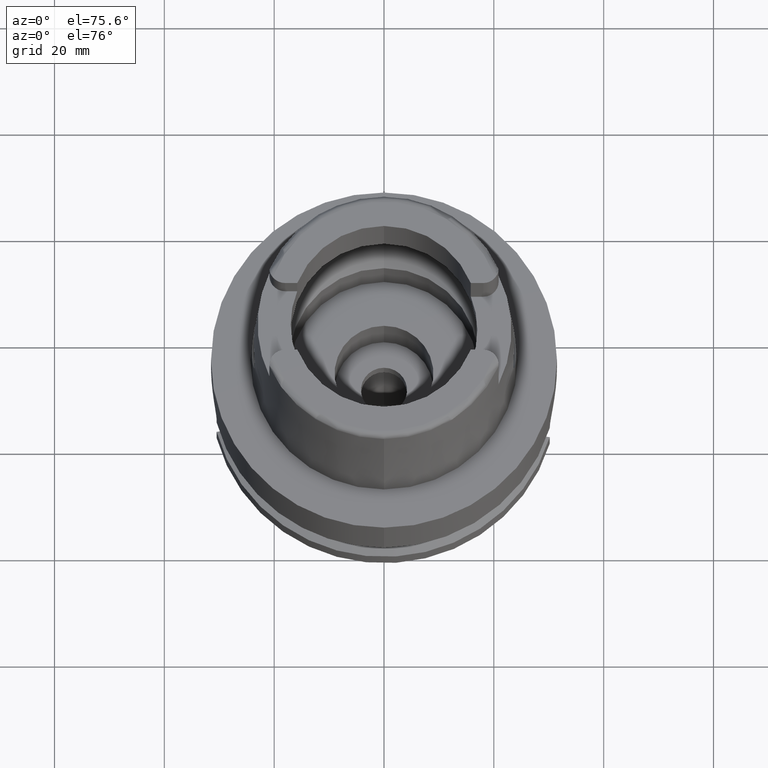
[diagram: clean part render]
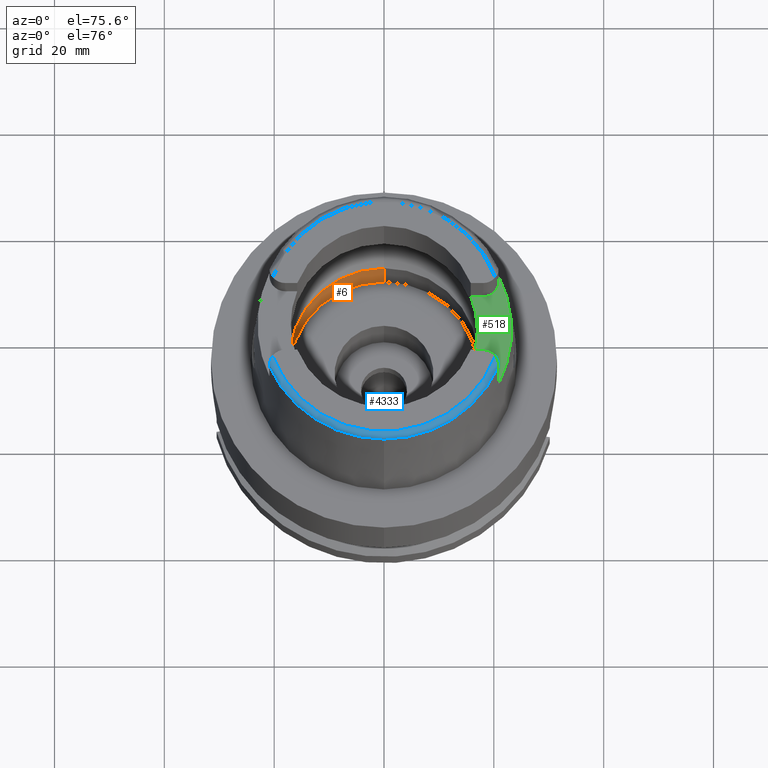
[diagram: same view with three faces highlighted in distinct colors, each labeled with its STEP entity id]
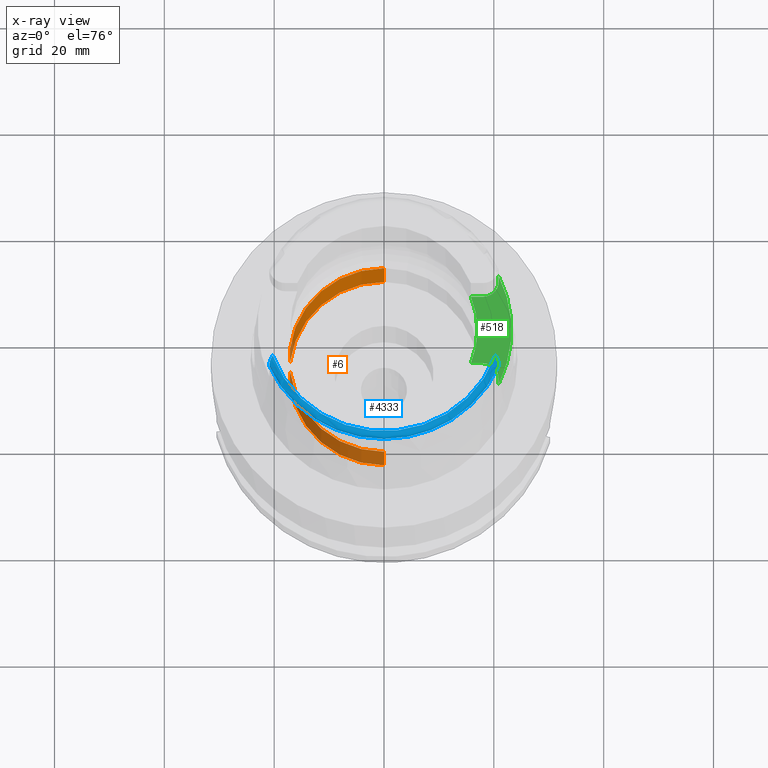
[diagram: x-ray of the same camera — body ghosted, the three highlighted faces saturated]
A machine part, auxiliary view with three faces highlighted in distinct colors.
The next image is the same camera in x-ray (body ghosted, the three faces saturated) — at least one of them is partly hidden behind the body in this view.
Their STEP definitions:

[orange] entity #6 — the highlighted cylindrical surface (partial cylindrical patch) has radius 17.25 mm, axis along (0, 0, 1).
#6 = ADVANCED_FACE ( 'NONE', ( #408 ), #5117, .F. ) ;
#103 = DIRECTION ( 'NONE',  ( 0.0000000000000000000, 0.0000000000000000000, -1.000000000000000000 ) ) ;
#262 = EDGE_CURVE ( 'NONE', #3041, #1965, #3048, .T. ) ;
#408 = FACE_OUTER_BOUND ( 'NONE', #868, .T. ) ;
#446 = LINE ( 'NONE', #2188, #556 ) ;
#556 = VECTOR ( 'NONE', #4819, 1000.000000000000000 ) ;
#868 = EDGE_LOOP ( 'NONE', ( #1957, #1447, #3262, #1809 ) ) ;
#960 = CARTESIAN_POINT ( 'NONE',  ( 0.0000000000000000000, 0.0000000000000000000, 0.0000000000000000000 ) ) ;
#968 = EDGE_CURVE ( 'NONE', #3152, #1965, #4348, .T. ) ;
#1146 = DIRECTION ( 'NONE',  ( 0.0000000000000000000, 0.0000000000000000000, -1.000000000000000000 ) ) ;
#1202 = CIRCLE ( 'NONE', #3566, 17.25000000000000000 ) ;
#1447 = ORIENTED_EDGE ( 'NONE', *, *, #5291, .F. ) ;
#1599 = DIRECTION ( 'NONE',  ( 0.0000000000000000000, -1.000000000000000000, 0.0000000000000000000 ) ) ;
#1698 = DIRECTION ( 'NONE',  ( 0.0000000000000000000, 1.000000000000000000, 0.0000000000000000000 ) ) ;
#1809 = ORIENTED_EDGE ( 'NONE', *, *, #262, .T. ) ;
#1877 = AXIS2_PLACEMENT_3D ( 'NONE', #960, #103, #4019 ) ;
#1957 = ORIENTED_EDGE ( 'NONE', *, *, #968, .F. ) ;
#1965 = VERTEX_POINT ( 'NONE', #2626 ) ;
#2188 = CARTESIAN_POINT ( 'NONE',  ( 0.0000000000000000000, -17.25000000000000000, -9.950000000000001066 ) ) ;
#2353 = CARTESIAN_POINT ( 'NONE',  ( 0.0000000000000000000, -17.25000000000000000, 0.0000000000000000000 ) ) ;
#2626 = CARTESIAN_POINT ( 'NONE',  ( 0.0000000000000000000, 17.25000000000000000, 0.0000000000000000000 ) ) ;
#2904 = CARTESIAN_POINT ( 'NONE',  ( 0.0000000000000000000, 0.0000000000000000000, 0.0000000000000000000 ) ) ;
#3041 = VERTEX_POINT ( 'NONE', #5501 ) ;
#3048 = LINE ( 'NONE', #4038, #4220 ) ;
#3152 = VERTEX_POINT ( 'NONE', #2353 ) ;
#3262 = ORIENTED_EDGE ( 'NONE', *, *, #5232, .T. ) ;
#3566 = AXIS2_PLACEMENT_3D ( 'NONE', #4180, #1146, #1599 ) ;
#3803 = CARTESIAN_POINT ( 'NONE',  ( 0.0000000000000000000, -17.25000000000000000, -9.950000000000001066 ) ) ;
#3852 = AXIS2_PLACEMENT_3D ( 'NONE', #2904, #4330, #1698 ) ;
#3921 = DIRECTION ( 'NONE',  ( 0.0000000000000000000, 0.0000000000000000000, 1.000000000000000000 ) ) ;
#4019 = DIRECTION ( 'NONE',  ( 0.0000000000000000000, -1.000000000000000000, 0.0000000000000000000 ) ) ;
#4038 = CARTESIAN_POINT ( 'NONE',  ( 0.0000000000000000000, 17.25000000000000000, -9.950000000000001066 ) ) ;
#4180 = CARTESIAN_POINT ( 'NONE',  ( 0.0000000000000000000, 0.0000000000000000000, -9.950000000000001066 ) ) ;
#4220 = VECTOR ( 'NONE', #3921, 1000.000000000000000 ) ;
#4330 = DIRECTION ( 'NONE',  ( 0.0000000000000000000, 0.0000000000000000000, 1.000000000000000000 ) ) ;
#4348 = CIRCLE ( 'NONE', #1877, 17.25000000000000000 ) ;
#4819 = DIRECTION ( 'NONE',  ( 0.0000000000000000000, 0.0000000000000000000, 1.000000000000000000 ) ) ;
#5117 = CYLINDRICAL_SURFACE ( 'NONE', #3852, 17.25000000000000000 ) ;
#5133 = VERTEX_POINT ( 'NONE', #3803 ) ;
#5232 = EDGE_CURVE ( 'NONE', #5133, #3041, #1202, .T. ) ;
#5291 = EDGE_CURVE ( 'NONE', #5133, #3152, #446, .T. ) ;
#5501 = CARTESIAN_POINT ( 'NONE',  ( 0.0000000000000000000, 17.25000000000000000, -9.950000000000001066 ) ) ;

[blue] entity #4333 — the highlighted toroidal blend (fillet) surface has major radius 21.5735 mm and minor (blend) radius 1.2 mm.
#21 = CARTESIAN_POINT ( 'NONE',  ( 0.0000000000000000000, 0.0000000000000000000, 30.85992712280000205 ) ) ;
#109 = CIRCLE ( 'NONE', #3288, 22.77198729362001117 ) ;
#145 = DIRECTION ( 'NONE',  ( 0.0000000000000000000, 0.0000000000000000000, -1.000000000000000000 ) ) ;
#149 = CARTESIAN_POINT ( 'NONE',  ( 20.86999999999999744, -9.027466053544706881, 31.10320975803935895 ) ) ;
#176 = CARTESIAN_POINT ( 'NONE',  ( 20.87000000000000099, -9.070000000000000284, 31.00584217417999966 ) ) ;
#204 = CARTESIAN_POINT ( 'NONE',  ( 20.65989317312919837, -8.000969851300299140, 31.85277509876306823 ) ) ;
#230 = CARTESIAN_POINT ( 'NONE',  ( -20.80944125743187101, -8.560931589284228593, 31.56167284231965908 ) ) ;
#253 = CARTESIAN_POINT ( 'NONE',  ( -20.86840555974040612, -9.053424643217532264, 31.04930129955603491 ) ) ;
#256 = ORIENTED_EDGE ( 'NONE', *, *, #5053, .F. ) ;
#348 = EDGE_CURVE ( 'NONE', #2395, #2917, #1812, .T. ) ;
#394 = DIRECTION ( 'NONE',  ( -0.0006539142454761719559, -0.9999997861980568503, 0.0000000000000000000 ) ) ;
#571 = CARTESIAN_POINT ( 'NONE',  ( 20.83291910200402697, -8.611146962856956577, 31.51081262675146277 ) ) ;
#601 = CARTESIAN_POINT ( 'NONE',  ( 20.79478934292429315, -8.425198604042915207, 31.63366604724851427 ) ) ;
#623 = CARTESIAN_POINT ( 'NONE',  ( -20.86557556137369929, -8.988896582597265095, 31.15751111892445735 ) ) ;
#626 = CARTESIAN_POINT ( 'NONE',  ( 20.82063947251255698, -8.540908562091757972, 31.56017788001964064 ) ) ;
#637 = CARTESIAN_POINT ( 'NONE',  ( -20.86974104083000014, -9.111384060663999307, 30.85992586919000047 ) ) ;
#647 = CARTESIAN_POINT ( 'NONE',  ( 20.87000527243999670, -9.110771420352000050, 30.85992623711999983 ) ) ;
#654 = CARTESIAN_POINT ( 'NONE',  ( -20.81965130235440498, -8.613726590839799968, 31.52312835331175123 ) ) ;
#814 = CARTESIAN_POINT ( 'NONE',  ( 20.28174256341000259, -7.352969181062000814, 32.00000000000000000 ) ) ;
#903 = DIRECTION ( 'NONE',  ( 0.0000000000000000000, 0.0000000000000000000, -1.000000000000000000 ) ) ;
#1060 = CARTESIAN_POINT ( 'NONE',  ( 20.87000527243999670, -9.110771420352000050, 30.85992623711999983 ) ) ;
#1061 = CARTESIAN_POINT ( 'NONE',  ( -20.71087063980491649, -8.202946958521431853, 31.77470310352421734 ) ) ;
#1064 = CARTESIAN_POINT ( 'NONE',  ( 20.69631002100164352, -8.094232892495334397, 31.81255263053273907 ) ) ;
#1087 = CARTESIAN_POINT ( 'NONE',  ( -20.83389679730635891, -8.695078261903434580, 31.46055235143609963 ) ) ;
#1118 = CARTESIAN_POINT ( 'NONE',  ( -20.75937723563937709, -8.359371561721335553, 31.68931180110121915 ) ) ;
#1121 = CARTESIAN_POINT ( 'NONE',  ( 20.57549815007833161, -7.819460688910765178, 31.91775230906814542 ) ) ;
#1366 = CIRCLE ( 'NONE', #3093, 21.57348458609000375 ) ;
#1382 = CIRCLE ( 'NONE', #1475, 22.77198729362000051 ) ;
#1423 = CARTESIAN_POINT ( 'NONE',  ( 20.87000000000000099, -9.077241786391001099, 30.98926446855000094 ) ) ;
#1449 = CARTESIAN_POINT ( 'NONE',  ( 20.87000527243999670, -9.108815747323999901, 30.87557453016999887 ) ) ;
#1475 = AXIS2_PLACEMENT_3D ( 'NONE', #21, #903, #394 ) ;
#1481 = CARTESIAN_POINT ( 'NONE',  ( -20.78390092998079552, -8.450684175141820020, 31.63434096999136713 ) ) ;
#1485 = CARTESIAN_POINT ( 'NONE',  ( 20.60584142187732581, -7.882689753701292545, 31.89608490661834850 ) ) ;
#1495 = ORIENTED_EDGE ( 'NONE', *, *, #2905, .T. ) ;
#1511 = CARTESIAN_POINT ( 'NONE',  ( -20.41173157002542737, -7.573831413672925450, 32.00000000000000711 ) ) ;
#1514 = CARTESIAN_POINT ( 'NONE',  ( 20.76384182572031989, -8.303672062692951883, 31.70578051577395584 ) ) ;
#1600 = CARTESIAN_POINT ( 'NONE',  ( -20.53798833350975883, -7.784002006565056142, 31.95268787515388809 ) ) ;
#1812 = B_SPLINE_CURVE_WITH_KNOTS ( 'NONE', 3,
 ( #3690, #4129, #3228, #1924, #3631, #1121, #4159, #1485, #2845, #204, #1064, #4611, #1514, #4971, #601, #3716, #5397, #2366, #626, #571, #2814, #2789, #1982, #5476, #5426, #149, #176 ),
 .UNSPECIFIED., .F., .F.,
 ( 4, 2, 1, 1, 2, 2, 2, 1, 1, 1, 2, 2, 2, 2, 2, 4 ),
 ( 0.0000000000000000000, 0.1250000000000028033, 0.1875000000000054956, 0.2187500000000063283, 0.2343750000000059397, 0.2500000000000055511, 0.3749999999999859002, 0.4374999999999752420, 0.4687499999999692468, 0.4843749999999647504, 0.4921874999999628630, 0.4999999999999609757, 0.6249999999999721334, 0.6874999999999785727, 0.7499999999999847899, 1.000000000000000000 ),
 .UNSPECIFIED. ) ;
#1826 = DIRECTION ( 'NONE',  ( -0.0006539142454762719193, -0.9999997861980568503, 0.0000000000000000000 ) ) ;
#1859 = EDGE_CURVE ( 'NONE', #3447, #2103, #1382, .T. ) ;
#1892 = CARTESIAN_POINT ( 'NONE',  ( 20.87000000000000099, -9.070000000000000284, 31.00584217417999966 ) ) ;
#1919 = CARTESIAN_POINT ( 'NONE',  ( -20.86135566201882341, -8.922682725543234383, 31.24556888721111036 ) ) ;
#1924 = CARTESIAN_POINT ( 'NONE',  ( 20.49047487034735937, -7.661369542464833593, 31.96226629233233396 ) ) ;
#1952 = CARTESIAN_POINT ( 'NONE',  ( -20.65967162955713832, -8.069508815592088879, 31.83568683232067187 ) ) ;
#1980 = CARTESIAN_POINT ( 'NONE',  ( -20.73694000585300046, -8.282940188721962471, 31.73269135242604833 ) ) ;
#1982 = CARTESIAN_POINT ( 'NONE',  ( 20.85693377095607914, -8.798186533019105582, 31.35731424292958991 ) ) ;
#2049 = CARTESIAN_POINT ( 'NONE',  ( 0.0000000000000000000, -22.77198729362000051, 30.85992712280000205 ) ) ;
#2103 = VERTEX_POINT ( 'NONE', #637 ) ;
#2362 = CARTESIAN_POINT ( 'NONE',  ( -20.82957567681351918, -8.668532734033453480, 31.48172813807788373 ) ) ;
#2366 = CARTESIAN_POINT ( 'NONE',  ( 20.80293936292530077, -8.460848375773549535, 31.61127780561272971 ) ) ;
#2385 = AXIS2_PLACEMENT_3D ( 'NONE', #5223, #3066, #1826 ) ;
#2392 = CARTESIAN_POINT ( 'NONE',  ( -20.84183081359974210, -8.746673659809168555, 31.41807175424027321 ) ) ;
#2395 = VERTEX_POINT ( 'NONE', #814 ) ;
#2440 = CARTESIAN_POINT ( 'NONE',  ( -20.26871835884000106, -7.388795116668999796, 32.00000000000000000 ) ) ;
#2470 = CARTESIAN_POINT ( 'NONE',  ( -20.64872152119643545, -8.042838005541925739, 31.84707166055133243 ) ) ;
#2789 = CARTESIAN_POINT ( 'NONE',  ( 20.85053978640041095, -8.739121017935568503, 31.40922190750005427 ) ) ;
#2814 = CARTESIAN_POINT ( 'NONE',  ( 20.84671456296227987, -8.708166814247643828, 31.43485793837249531 ) ) ;
#2842 = CARTESIAN_POINT ( 'NONE',  ( -20.86965396060401901, -9.104885656140119465, 30.91352330295328699 ) ) ;
#2845 = CARTESIAN_POINT ( 'NONE',  ( 20.61235746419344750, -7.896722288444665949, 31.89105184927624848 ) ) ;
#2895 = CARTESIAN_POINT ( 'NONE',  ( -20.86974104083000014, -9.111384060663999307, 30.85992586919000047 ) ) ;
#2905 = EDGE_CURVE ( 'NONE', #2395, #5066, #1366, .T. ) ;
#2917 = VERTEX_POINT ( 'NONE', #5393 ) ;
#2928 = B_SPLINE_CURVE_WITH_KNOTS ( 'NONE', 3,
 ( #2895, #2842, #3741, #253, #5079, #3775, #623, #1919, #4608, #3277, #2392, #1087, #2362, #5507, #3306, #654, #230, #5391, #1481, #5424, #5019, #1118, #3224, #1980, #1061, #4122, #1952, #2470, #3713, #1600, #1511, #3334 ),
 .UNSPECIFIED., .F., .F.,
 ( 4, 2, 2, 2, 2, 2, 1, 2, 2, 2, 1, 2, 2, 1, 1, 2, 2, 4 ),
 ( 0.0000000000000000000, 0.1249999999999988065, 0.1875000000000008049, 0.2500000000000028311, 0.3750000000000117129, 0.4375000000000199840, 0.4687500000000240918, 0.4843750000000227596, 0.5000000000000214273, 0.5625000000000277556, 0.5937500000000305311, 0.6093750000000319744, 0.6250000000000333067, 0.6875000000000401901, 0.7187500000000435207, 0.7343750000000437428, 0.7500000000000438538, 1.000000000000000000 ),
 .UNSPECIFIED. ) ;
#3066 = DIRECTION ( 'NONE',  ( 0.0000000000000000000, 0.0000000000000000000, 1.000000000000000000 ) ) ;
#3093 = AXIS2_PLACEMENT_3D ( 'NONE', #5310, #5282, #4033 ) ;
#3165 = CARTESIAN_POINT ( 'NONE',  ( 20.86999753952999725, -9.103349199567000838, 30.90727108088000108 ) ) ;
#3223 = CARTESIAN_POINT ( 'NONE',  ( 20.87000070298999788, -9.089829044885000542, 30.95631188083000040 ) ) ;
#3224 = CARTESIAN_POINT ( 'NONE',  ( -20.75651957384753388, -8.349399316435427210, 31.69506247104218843 ) ) ;
#3228 = CARTESIAN_POINT ( 'NONE',  ( 20.40597376087879411, -7.522427693449857067, 31.99056657308309326 ) ) ;
#3277 = CARTESIAN_POINT ( 'NONE',  ( -20.84617743572721693, -8.779075271056164809, 31.38957932422665209 ) ) ;
#3288 = AXIS2_PLACEMENT_3D ( 'NONE', #5366, #145, #4966 ) ;
#3306 = CARTESIAN_POINT ( 'NONE',  ( -20.82124085040150874, -8.622207079828278609, 31.51683833193841977 ) ) ;
#3334 = CARTESIAN_POINT ( 'NONE',  ( -20.26871835884000106, -7.388795116668999796, 32.00000000000000000 ) ) ;
#3338 = ORIENTED_EDGE ( 'NONE', *, *, #4287, .F. ) ;
#3447 = VERTEX_POINT ( 'NONE', #2049 ) ;
#3631 = CARTESIAN_POINT ( 'NONE',  ( 20.53115025137623206, -7.732795395376441228, 31.94457861686312583 ) ) ;
#3690 = CARTESIAN_POINT ( 'NONE',  ( 20.28174256341000259, -7.352969181062000814, 32.00000000000000000 ) ) ;
#3713 = CARTESIAN_POINT ( 'NONE',  ( -20.64363927563186607, -8.030693163471388729, 31.85214960985589983 ) ) ;
#3716 = CARTESIAN_POINT ( 'NONE',  ( 20.79878803236591267, -8.442504310137170620, 31.62285549402754725 ) ) ;
#3741 = CARTESIAN_POINT ( 'NONE',  ( -20.86946710590525811, -9.089579394755842756, 30.96756683976520108 ) ) ;
#3775 = CARTESIAN_POINT ( 'NONE',  ( -20.86645911899746508, -9.006285414326008265, 31.13159338815765764 ) ) ;
#3823 = ORIENTED_EDGE ( 'NONE', *, *, #5062, .F. ) ;
#3913 = FACE_OUTER_BOUND ( 'NONE', #4979, .T. ) ;
#4033 = DIRECTION ( 'NONE',  ( 0.9401236264118068009, -0.3408336354621024911, 0.0000000000000000000 ) ) ;
#4122 = CARTESIAN_POINT ( 'NONE',  ( -20.67575093861131563, -8.109527567696140693, 31.81821672665437717 ) ) ;
#4129 = CARTESIAN_POINT ( 'NONE',  ( 20.34544331390013738, -7.435023422382247560, 32.00000000000000711 ) ) ;
#4159 = CARTESIAN_POINT ( 'NONE',  ( 20.59380051161442893, -7.857305349459556609, 31.90492874435296144 ) ) ;
#4287 = EDGE_CURVE ( 'NONE', #2103, #5066, #2928, .T. ) ;
#4301 = B_SPLINE_CURVE_WITH_KNOTS ( 'NONE', 3,
 ( #1892, #1423, #3223, #3165, #1449, #1060 ),
 .UNSPECIFIED., .F., .F.,
 ( 4, 1, 1, 4 ),
 ( 0.0000000000000000000, 0.3333333333333000081, 0.6666666666667000474, 1.000000000000000000 ),
 .UNSPECIFIED. ) ;
#4333 = ADVANCED_FACE ( 'NONE', ( #3913 ), #4684, .T. ) ;
#4608 = CARTESIAN_POINT ( 'NONE',  ( -20.85702335642099214, -8.870150273657264606, 31.30358593853665994 ) ) ;
#4611 = CARTESIAN_POINT ( 'NONE',  ( 20.74270208879862665, -8.233895946573097646, 31.74292089319266807 ) ) ;
#4684 = TOROIDAL_SURFACE ( 'NONE', #2385, 21.57348458609000019, 1.199999999999999956 ) ;
#4895 = ORIENTED_EDGE ( 'NONE', *, *, #348, .F. ) ;
#4966 = DIRECTION ( 'NONE',  ( 0.9164775804687985694, -0.4000860463675992573, 0.0000000000000000000 ) ) ;
#4971 = CARTESIAN_POINT ( 'NONE',  ( 20.78503924901574607, -8.384759796238576257, 31.65838218514202396 ) ) ;
#4979 = EDGE_LOOP ( 'NONE', ( #5497, #256, #3823, #4895, #1495, #3338 ) ) ;
#5019 = CARTESIAN_POINT ( 'NONE',  ( -20.76586066013513587, -8.382444662446598471, 31.67582812752360510 ) ) ;
#5053 = EDGE_CURVE ( 'NONE', #5418, #3447, #109, .T. ) ;
#5062 = EDGE_CURVE ( 'NONE', #2917, #5418, #4301, .T. ) ;
#5066 = VERTEX_POINT ( 'NONE', #2440 ) ;
#5079 = CARTESIAN_POINT ( 'NONE',  ( -20.86791392566999903, -9.039174092226467394, 31.07665764524847063 ) ) ;
#5223 = CARTESIAN_POINT ( 'NONE',  ( 0.0000000000000000000, 0.0000000000000000000, 30.80000000000000071 ) ) ;
#5282 = DIRECTION ( 'NONE',  ( 0.0000000000000000000, 0.0000000000000000000, -1.000000000000000000 ) ) ;
#5310 = CARTESIAN_POINT ( 'NONE',  ( 0.0000000000000000000, 0.0000000000000000000, 32.00000000000000000 ) ) ;
#5366 = CARTESIAN_POINT ( 'NONE',  ( 0.0000000000000000000, 0.0000000000000000000, 30.85992712280000205 ) ) ;
#5391 = CARTESIAN_POINT ( 'NONE',  ( -20.80006079709092148, -8.517498273179295865, 31.59140322093994513 ) ) ;
#5393 = CARTESIAN_POINT ( 'NONE',  ( 20.87000000000000099, -9.070000000000000284, 31.00584217417999966 ) ) ;
#5397 = CARTESIAN_POINT ( 'NONE',  ( 20.80141405927696496, -8.454035550405690103, 31.61560003128129637 ) ) ;
#5418 = VERTEX_POINT ( 'NONE', #647 ) ;
#5424 = CARTESIAN_POINT ( 'NONE',  ( -20.77529855508505818, -8.416861553124887152, 31.65539538979731660 ) ) ;
#5426 = CARTESIAN_POINT ( 'NONE',  ( 20.86950551965417233, -8.954957829139427616, 31.20274675801962871 ) ) ;
#5476 = CARTESIAN_POINT ( 'NONE',  ( 20.85959324314661956, -8.827464118595086617, 31.32987977814606495 ) ) ;
#5497 = ORIENTED_EDGE ( 'NONE', *, *, #1859, .F. ) ;
#5507 = CARTESIAN_POINT ( 'NONE',  ( -20.82465873988622462, -8.640883168661350311, 31.50280715678544041 ) ) ;

[green] entity #518 — the highlighted planar face has unit normal (0, 0, 1).
#2 = CARTESIAN_POINT ( 'NONE',  ( 20.87000000000000099, 9.070000000000000284, 22.00000000000000000 ) ) ;
#33 = FACE_OUTER_BOUND ( 'NONE', #5163, .T. ) ;
#508 = CARTESIAN_POINT ( 'NONE',  ( 15.80149043602999903, 6.270000000000000462, 22.00000000000000000 ) ) ;
#518 = ADVANCED_FACE ( 'NONE', ( #33 ), #3098, .T. ) ;
#635 = CARTESIAN_POINT ( 'NONE',  ( 20.87000000000000099, -9.070000000000000284, 22.00000000000000000 ) ) ;
#720 = CARTESIAN_POINT ( 'NONE',  ( 20.87000000000000099, 9.070000000000000284, 22.00000000000000000 ) ) ;
#780 = EDGE_CURVE ( 'NONE', #3907, #2735, #2581, .T. ) ;
#839 = AXIS2_PLACEMENT_3D ( 'NONE', #3005, #1769, #3887 ) ;
#1070 = EDGE_CURVE ( 'NONE', #1129, #2853, #5109, .T. ) ;
#1098 = VERTEX_POINT ( 'NONE', #1158 ) ;
#1129 = VERTEX_POINT ( 'NONE', #4646 ) ;
#1158 = CARTESIAN_POINT ( 'NONE',  ( 18.07000000000000028, -6.270000000000000462, 22.00000000000000000 ) ) ;
#1209 = CARTESIAN_POINT ( 'NONE',  ( 18.07000000000000028, -6.270000000000000462, 22.00000000000000000 ) ) ;
#1299 = VERTEX_POINT ( 'NONE', #5153 ) ;
#1460 = ORIENTED_EDGE ( 'NONE', *, *, #5392, .F. ) ;
#1699 = ORIENTED_EDGE ( 'NONE', *, *, #1070, .F. ) ;
#1719 = ORIENTED_EDGE ( 'NONE', *, *, #2712, .F. ) ;
#1740 = DIRECTION ( 'NONE',  ( -4.018343739316107275E-06, 0.9999999999919265692, -7.121100977230194019E-14 ) ) ;
#1741 = VECTOR ( 'NONE', #2011, 1000.000000000000000 ) ;
#1769 = DIRECTION ( 'NONE',  ( 0.0000000000000000000, 0.0000000000000000000, 1.000000000000000000 ) ) ;
#1915 = AXIS2_PLACEMENT_3D ( 'NONE', #3313, #2819, #5482 ) ;
#2011 = DIRECTION ( 'NONE',  ( -1.000000000000000000, -8.496094534321000305E-14, 0.0000000000000000000 ) ) ;
#2111 = AXIS2_PLACEMENT_3D ( 'NONE', #4879, #2585, #2168 ) ;
#2168 = DIRECTION ( 'NONE',  ( 1.000000000000000000, 0.0000000000000000000, 0.0000000000000000000 ) ) ;
#2254 = CARTESIAN_POINT ( 'NONE',  ( 18.07000000000000028, 6.270000000000000462, 22.00000000000000000 ) ) ;
#2547 = VECTOR ( 'NONE', #2995, 1000.000000000000000 ) ;
#2581 = CIRCLE ( 'NONE', #4787, 2.800000000000000266 ) ;
#2585 = DIRECTION ( 'NONE',  ( 0.0000000000000000000, 0.0000000000000000000, 1.000000000000000000 ) ) ;
#2688 = ORIENTED_EDGE ( 'NONE', *, *, #5225, .F. ) ;
#2712 = EDGE_CURVE ( 'NONE', #1299, #1129, #4468, .T. ) ;
#2735 = VERTEX_POINT ( 'NONE', #720 ) ;
#2742 = CIRCLE ( 'NONE', #839, 2.800000000000000266 ) ;
#2819 = DIRECTION ( 'NONE',  ( 0.0000000000000000000, 0.0000000000000000000, -1.000000000000000000 ) ) ;
#2823 = CARTESIAN_POINT ( 'NONE',  ( 20.87000000000000099, -9.435852868557860873, 22.00000000000000000 ) ) ;
#2838 = EDGE_CURVE ( 'NONE', #1098, #5594, #5115, .T. ) ;
#2853 = VERTEX_POINT ( 'NONE', #5027 ) ;
#2882 = CARTESIAN_POINT ( 'NONE',  ( 20.87000000000000099, -10.16755860605000095, 22.00000000000000000 ) ) ;
#2995 = DIRECTION ( 'NONE',  ( 1.000000000000000000, -8.222026968698000936E-14, 0.0000000000000000000 ) ) ;
#3005 = CARTESIAN_POINT ( 'NONE',  ( 18.07000000000000028, -9.070000000000000284, 22.00000000000000000 ) ) ;
#3098 = PLANE ( 'NONE',  #2111 ) ;
#3287 = CARTESIAN_POINT ( 'NONE',  ( 20.87000000000000099, -9.801705737115721462, 22.00000000000000000 ) ) ;
#3313 = CARTESIAN_POINT ( 'NONE',  ( 0.0000000000000000000, 0.0000000000000000000, 22.00000000000000000 ) ) ;
#3355 = CARTESIAN_POINT ( 'NONE',  ( 15.80149043602999903, -6.270000000000000462, 22.00000000000000000 ) ) ;
#3359 = DIRECTION ( 'NONE',  ( 0.0000000000000000000, 0.0000000000000000000, 1.000000000000000000 ) ) ;
#3435 = CARTESIAN_POINT ( 'NONE',  ( 18.07000000000000028, 9.070000000000000284, 22.00000000000000000 ) ) ;
#3520 = ORIENTED_EDGE ( 'NONE', *, *, #780, .F. ) ;
#3774 = CARTESIAN_POINT ( 'NONE',  ( 0.0000000000000000000, 0.0000000000000000000, 22.00000000000000000 ) ) ;
#3887 = DIRECTION ( 'NONE',  ( 1.000000000000000000, 0.0000000000000000000, 0.0000000000000000000 ) ) ;
#3907 = VERTEX_POINT ( 'NONE', #2254 ) ;
#3912 = LINE ( 'NONE', #2, #4941 ) ;
#3922 = ORIENTED_EDGE ( 'NONE', *, *, #4880, .F. ) ;
#3930 = DIRECTION ( 'NONE',  ( 0.0000000000000000000, -1.000000000000000000, 0.0000000000000000000 ) ) ;
#4217 = VERTEX_POINT ( 'NONE', #508 ) ;
#4468 = CIRCLE ( 'NONE', #1915, 23.21499834174998966 ) ;
#4495 = CIRCLE ( 'NONE', #5025, 17.00000000000000000 ) ;
#4562 = ORIENTED_EDGE ( 'NONE', *, *, #5473, .F. ) ;
#4646 = CARTESIAN_POINT ( 'NONE',  ( 20.87000000000000099, -10.16755860605000095, 22.00000000000000000 ) ) ;
#4756 = CARTESIAN_POINT ( 'NONE',  ( 15.80149043602999903, 6.270000000000000462, 22.00000000000000000 ) ) ;
#4787 = AXIS2_PLACEMENT_3D ( 'NONE', #3435, #5184, #3930 ) ;
#4879 = CARTESIAN_POINT ( 'NONE',  ( 0.0000000000000000000, 0.0000000000000000000, 22.00000000000000000 ) ) ;
#4880 = EDGE_CURVE ( 'NONE', #4217, #3907, #5070, .T. ) ;
#4941 = VECTOR ( 'NONE', #1740, 999.9999999999998863 ) ;
#5025 = AXIS2_PLACEMENT_3D ( 'NONE', #3774, #3359, #5050 ) ;
#5027 = CARTESIAN_POINT ( 'NONE',  ( 20.87000000000000099, -9.070000000000000284, 22.00000000000000000 ) ) ;
#5050 = DIRECTION ( 'NONE',  ( 0.9294994374136111848, -0.3688235294118045182, 0.0000000000000000000 ) ) ;
#5070 = LINE ( 'NONE', #4756, #2547 ) ;
#5109 = B_SPLINE_CURVE_WITH_KNOTS ( 'NONE', 3,
 ( #2882, #3287, #2823, #635 ),
 .UNSPECIFIED., .F., .F.,
 ( 4, 4 ),
 ( 0.0000000000000000000, 1.000000000000000000 ),
 .UNSPECIFIED. ) ;
#5115 = LINE ( 'NONE', #1209, #1741 ) ;
#5153 = CARTESIAN_POINT ( 'NONE',  ( 20.87000000000000099, 10.16755860605000095, 22.00000000000000000 ) ) ;
#5163 = EDGE_LOOP ( 'NONE', ( #5495, #1460, #1699, #1719, #4562, #3520, #3922, #2688 ) ) ;
#5184 = DIRECTION ( 'NONE',  ( 0.0000000000000000000, 0.0000000000000000000, 1.000000000000000000 ) ) ;
#5225 = EDGE_CURVE ( 'NONE', #5594, #4217, #4495, .T. ) ;
#5392 = EDGE_CURVE ( 'NONE', #2853, #1098, #2742, .T. ) ;
#5473 = EDGE_CURVE ( 'NONE', #2735, #1299, #3912, .T. ) ;
#5482 = DIRECTION ( 'NONE',  ( 0.8989877876694615244, 0.4379736951246811505, 0.0000000000000000000 ) ) ;
#5495 = ORIENTED_EDGE ( 'NONE', *, *, #2838, .F. ) ;
#5594 = VERTEX_POINT ( 'NONE', #3355 ) ;